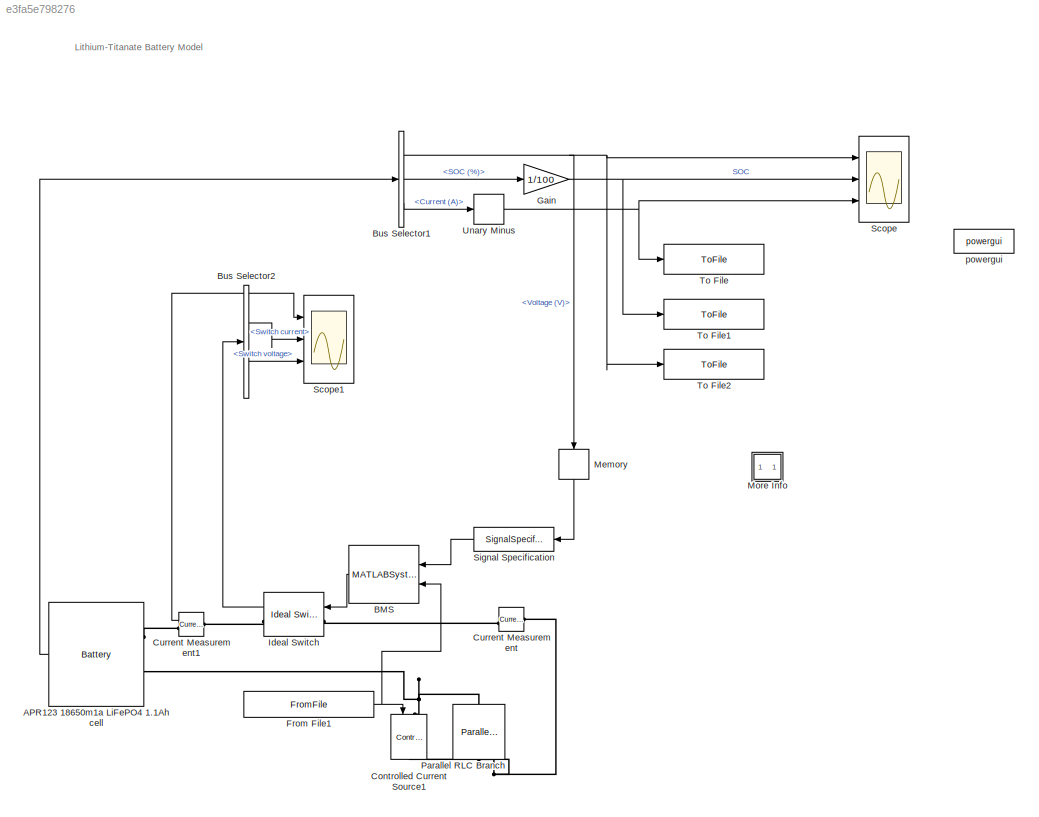
MODEL slx_e3fa5e798276
KIND model
CONFIG AbsTol = auto
CONFIG FixedStep = auto
CONFIG MaxStep = 0.1
CONFIG MinStep = auto
CONFIG RelTol = 1e-4
CONFIG SampleTimeConstraint = Unconstrained
CONFIG Solver = ode23tb
CONFIG SolverMode = Auto
CONFIG SolverName = ode23tb
CONFIG StartTime = 33360
CONFIG StopTime = 34100
BLOCK [Reference] APR123 18650m1a LiFePO4 1.1Ah cell   REF=electricdrivelib/Extra Sources/Battery
  Ports = [0, 1, 0, 0, 0, 2]
  SourceBlock = electricdrivelib/Extra Sources/Battery
  SourceType = Battery
BLOCK [MATLABSystem] BMS
  MaskDisplay = disp('simple_bms');\nport_label('input',1,'voltage');\nport_label('input',2,'current');\nport_label('output',1,'y');
  MaskType = simple_bms
  Ports = [2, 1]
  SimulateUsing = Code generation
  System = simple_bms
  Vmax = 3.6
  Vmin = 2
BLOCK [BusSelector] Bus Selector1
  OutputSignals = Voltage (V),SOC (%),Current (A)
  Ports = [1, 3]
BLOCK [BusSelector] Bus Selector2
  OutputSignals = Switch current,Switch voltage
  Ports = [1, 2]
BLOCK [Reference] Controlled Current Source1  REF=powerlib/Electrical
Sources/Controlled Current Source
  Ports = [1, 0, 0, 0, 0, 1, 1]
  SourceBlock = powerlib/Electrical\nSources/Controlled Current Source
  SourceType = Controlled Current Source
BLOCK [Reference] Current Measurement  REF=powerlib/Measurements/Current Measurement
  Ports = [0, 1, 0, 0, 0, 1, 1]
  SourceBlock = powerlib/Measurements/Current Measurement
  SourceType = Current Measurement
  UserDataPersistent = on
BLOCK [Reference] Current Measurement1  REF=powerlib/Measurements/Current Measurement
  Ports = [0, 1, 0, 0, 0, 1, 1]
  SourceBlock = powerlib/Measurements/Current Measurement
  SourceType = Current Measurement
  UserDataPersistent = on
BLOCK [FromFile] From File1
  FileName = test_current_formatted.mat
  SampleTime = 10
BLOCK [Gain] Gain
  Gain = 1/100
  OutDataTypeStr = Inherit: Inherit via internal rule
  ParamDataTypeStr = Inherit: Inherit via internal rule
  SaturateOnIntegerOverflow = off
BLOCK [Reference] Ideal Switch  REF=powerlib/Power
Electronics/Ideal Switch
  Ports = [1, 1, 0, 0, 0, 1, 1]
  SourceBlock = powerlib/Power\nElectronics/Ideal Switch
  SourceType = Ideal Switch
BLOCK [Memory] Memory
  LinearizeAsDelay = on
  X0 = 1.95
BLOCK [SubSystem] More Info
  OpenFcn = showdemo(bdroot(gcb))
  Ports = []
  RequestExecContextInheritance = off
  Variant = off
BLOCK [Reference] Parallel RLC Branch  REF=powerlib/Elements/Parallel RLC Branch
  AttributesFormatString = \n
  Ports = [0, 0, 0, 0, 0, 1, 1]
  SourceBlock = powerlib/Elements/Parallel RLC Branch
  SourceType = Parallel RLC Branch
BLOCK [Scope] Scope
  NumInputPorts = 3
  Ports = [3]
  ScopeSpecificationString = Simulink.scopes.TimeScopeBlockCfg('CurrentConfiguration', extmgr.ConfigurationSet(extmgr.Configuration('Core','General UI',true),extmgr.Configuration('Core','Source UI',true),extmgr.Configuration('Sources','WiredSimulink',true,'DataLogging',true,'DataLoggingVariableName','ScopeData1','DataLoggingSaveFormat','StructureWithTime','DataLoggingDecimation','1','DataLoggingDecimateData',true,'SampleTime'...<+3726ch>
BLOCK [Scope] Scope1
  NumInputPorts = 3
  Ports = [3]
  ScopeSpecificationString = Simulink.scopes.TimeScopeBlockCfg('CurrentConfiguration', extmgr.ConfigurationSet(extmgr.Configuration('Core','General UI',true),extmgr.Configuration('Core','Source UI',true),extmgr.Configuration('Sources','WiredSimulink',true,'DataLogging',true,'DataLoggingVariableName','ScopeData2','DataLoggingSaveFormat','StructureWithTime','DataLoggingDecimation','1','DataLoggingDecimateData',true,'SampleTime'...<+3709ch>
BLOCK [SignalSpecification] Signal Specification
  Dimensions = [1]
  OutMax = [1000]
  OutMin = [0]
BLOCK [ToFile] To File
  Filename = current_simulink_bms.mat
  MatrixName = c
  Ports = [1]
  SampleTime = 10
BLOCK [ToFile] To File1
  Filename = soc_simulink_bms.mat
  MatrixName = soc
  Ports = [1]
  SampleTime = 10
BLOCK [ToFile] To File2
  Filename = voltage_simulink_bms.mat
  MatrixName = v
  Ports = [1]
  SampleTime = 10
BLOCK [UnaryMinus] Unary Minus
BLOCK [Reference] powergui  REF=powerlib/powergui
  Ports = []
  SourceBlock = powerlib/powergui
  SourceType = PSB option menu block
  UserDataPersistent = on
ANNOTATION (root): Lithium-Titanate Battery Model
LINE APR123 18650m1a LiFePO4 1.1Ah cell :1 -> Bus Selector1:1
LINE BMS:1 -> Ideal Switch:1
NET Bus Selector1:1 -> Memory:1, Scope:1, To File2:1
LINE Bus Selector1:2 -> Gain:1
LINE Bus Selector1:3 -> Unary Minus:1
LINE Bus Selector2:1 -> Scope1:2
LINE Bus Selector2:2 -> Scope1:3
LINE Current Measurement1:1 -> Scope1:1
NET From File1:1 -> BMS:2, Controlled Current Source1:1
NET Gain:1 -> Scope:2, To File1:1
LINE Ideal Switch:1 -> Bus Selector2:1
LINE Memory:1 -> Signal Specification:1
LINE Signal Specification:1 -> BMS:1
NET Unary Minus:1 -> Scope:3, To File:1
PLINE APR123 18650m1a LiFePO4 1.1Ah cell :LConn1 -- Current Measurement1:RConn1
PNET net1: APR123 18650m1a LiFePO4 1.1Ah cell :LConn2 -- Controlled Current Source1:LConn1 -- Parallel RLC Branch:LConn1
PNET net2: Controlled Current Source1:RConn1 -- Current Measurement:LConn1 -- Parallel RLC Branch:RConn1
PLINE Current Measurement1:LConn1 -- Ideal Switch:RConn1
PLINE Current Measurement:RConn1 -- Ideal Switch:LConn1
note: NET lines group one-source signal fan-out (src -> all destinations, sorted); 1:1 wires keep LINE; PNET lines group multi-terminal physical nets as a canonical sorted terminal list (undirected conserving connections); 2-terminal nets keep the pairwise PLINE form
